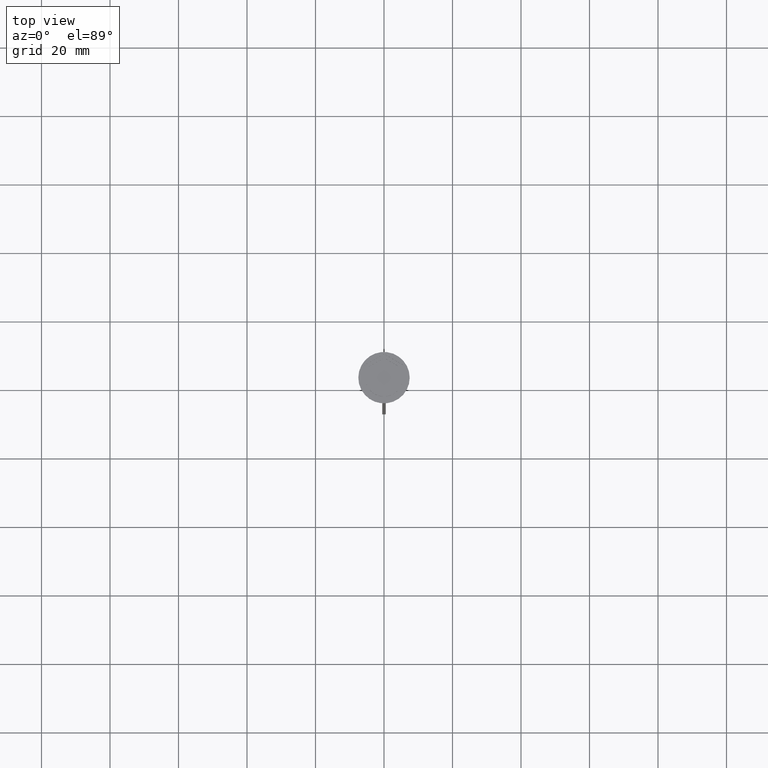
[diagram: clean part render]
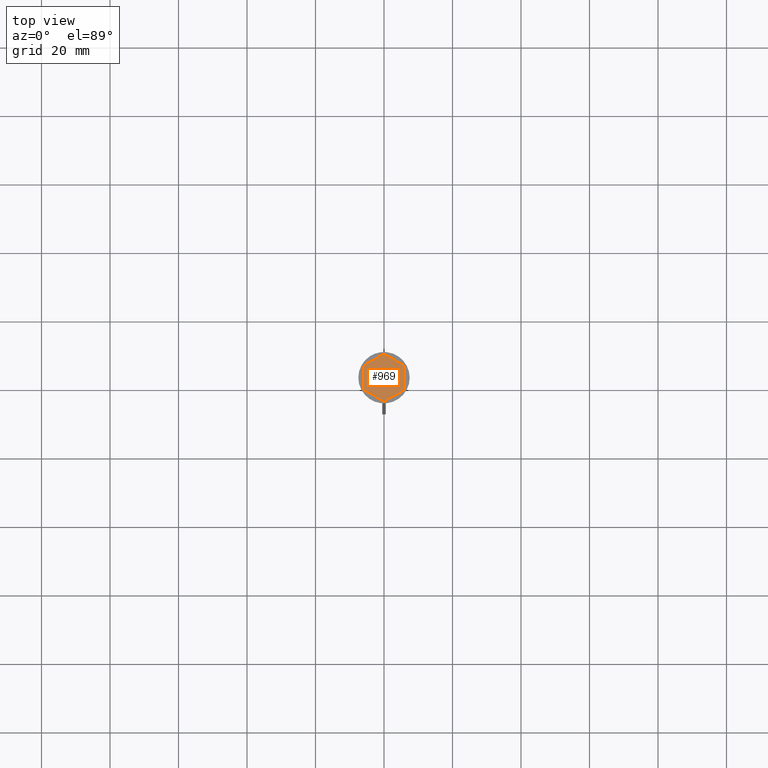
[diagram: same view with one face highlighted and labeled with its STEP entity id]
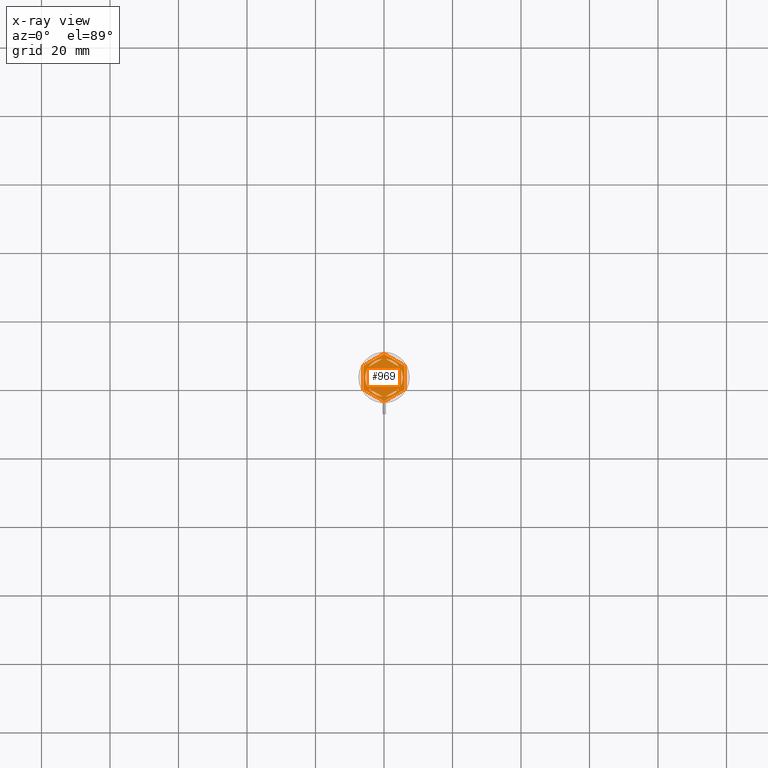
[diagram: x-ray of the same camera — body ghosted, the highlighted face saturated]
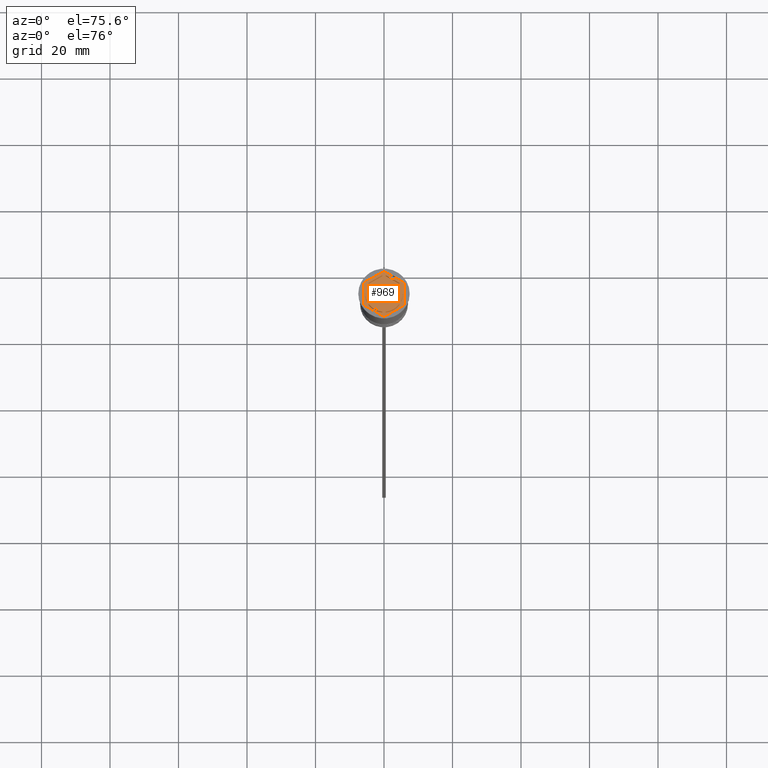
[diagram: same view with one face highlighted and labeled with its STEP entity id]
A machine part, top view. The second image highlights one B-rep face of the part: STEP entity #969.
The next image is the same camera in x-ray: the body ghosted, the highlighted face saturated — about 0% of this face is hidden behind the body in this view.
A second angle (auxiliary view) of the same face is appended — the face is thin or edge-on in the first view.
In plain terms, the highlighted planar face has unit normal (0, 0, 1).
Its self-contained STEP definition (entity closure, byte-faithful):
#19 = DIRECTION ( 'NONE',  ( 0.8660254037844385966, 0.5000000000000001110, -0.000000000000000000 ) ) ;
#30 = EDGE_CURVE ( 'NONE', #1550, #2446, #1545, .T. ) ;
#43 = AXIS2_PLACEMENT_3D ( 'NONE', #313, #1100, #1891 ) ;
#77 = CARTESIAN_POINT ( 'NONE',  ( -5.000000000000000888, -2.886751345948129099, -1.000000000000000888 ) ) ;
#94 = VECTOR ( 'NONE', #2028, 1000.000000000000227 ) ;
#116 = EDGE_CURVE ( 'NONE', #519, #642, #2459, .T. ) ;
#126 = CARTESIAN_POINT ( 'NONE',  ( -4.484313483298445036, -3.184483095183233470, -1.000000000000000888 ) ) ;
#155 = CARTESIAN_POINT ( 'NONE',  ( 0.000000000000000000, 0.000000000000000000, -1.000000000000000000 ) ) ;
#162 = AXIS2_PLACEMENT_3D ( 'NONE', #1289, #2075, #337 ) ;
#169 = EDGE_LOOP ( 'NONE', ( #1653, #258 ) ) ;
#184 = VERTEX_POINT ( 'NONE', #905 ) ;
#204 = VERTEX_POINT ( 'NONE', #126 ) ;
#252 = DIRECTION ( 'NONE',  ( 0.000000000000000000, -1.000000000000000000, 0.000000000000000000 ) ) ;
#253 = AXIS2_PLACEMENT_3D ( 'NONE', #1619, #2215, #1067 ) ;
#258 = ORIENTED_EDGE ( 'NONE', *, *, #2063, .F. ) ;
#264 = EDGE_CURVE ( 'NONE', #1884, #1261, #983, .T. ) ;
#276 = DIRECTION ( 'NONE',  ( 0.8660254037844387076, -0.4999999999999998335, 0.000000000000000000 ) ) ;
#299 = EDGE_LOOP ( 'NONE', ( #2064, #1964 ) ) ;
#313 = CARTESIAN_POINT ( 'NONE',  ( 0.000000000000000000, 0.000000000000000000, -1.000000000000000000 ) ) ;
#323 = ORIENTED_EDGE ( 'NONE', *, *, #2313, .F. ) ;
#327 = LINE ( 'NONE', #2281, #537 ) ;
#333 = FACE_OUTER_BOUND ( 'NONE', #1232, .T. ) ;
#337 = DIRECTION ( 'NONE',  ( 1.000000000000000000, 0.000000000000000000, 0.000000000000000000 ) ) ;
#342 = CARTESIAN_POINT ( 'NONE',  ( 0.000000000000000000, 0.000000000000000000, -1.000000000000000000 ) ) ;
#362 = ORIENTED_EDGE ( 'NONE', *, *, #2316, .F. ) ;
#388 = CARTESIAN_POINT ( 'NONE',  ( 6.000000000000000000, 3.464101615137753942, -1.000000000000000000 ) ) ;
#391 = EDGE_CURVE ( 'NONE', #2290, #1206, #2212, .T. ) ;
#440 = CARTESIAN_POINT ( 'NONE',  ( 4.999999999999999112, -2.291287847477924355, -1.000000000000000888 ) ) ;
#454 = ORIENTED_EDGE ( 'NONE', *, *, #2357, .F. ) ;
#472 = CARTESIAN_POINT ( 'NONE',  ( -6.000000000000000000, 3.464101615137752166, -1.000000000000000000 ) ) ;
#477 = ORIENTED_EDGE ( 'NONE', *, *, #1822, .F. ) ;
#492 = EDGE_CURVE ( 'NONE', #1422, #786, #1053, .T. ) ;
#514 = DIRECTION ( 'NONE',  ( -0.8660254037844385966, -0.4999999999999998890, 0.000000000000000000 ) ) ;
#519 = VERTEX_POINT ( 'NONE', #1893 ) ;
#521 = EDGE_CURVE ( 'NONE', #1261, #2290, #327, .T. ) ;
#537 = VECTOR ( 'NONE', #514, 1000.000000000000227 ) ;
#560 = FACE_BOUND ( 'NONE', #299, .T. ) ;
#561 = ORIENTED_EDGE ( 'NONE', *, *, #2149, .T. ) ;
#565 = CARTESIAN_POINT ( 'NONE',  ( 6.000000000000000000, 3.464101615137753942, -1.000000000000000000 ) ) ;
#572 = DIRECTION ( 'NONE',  ( 1.000000000000000000, 0.000000000000000000, -0.000000000000000000 ) ) ;
#592 = CARTESIAN_POINT ( 'NONE',  ( 4.336808689942017736E-16, 5.773502691896259087, -1.000000000000000888 ) ) ;
#593 = ORIENTED_EDGE ( 'NONE', *, *, #30, .F. ) ;
#612 = VECTOR ( 'NONE', #1346, 1000.000000000000000 ) ;
#626 = LINE ( 'NONE', #865, #2067 ) ;
#642 = VERTEX_POINT ( 'NONE', #1127 ) ;
#669 = CARTESIAN_POINT ( 'NONE',  ( -6.000000000000000000, -3.464101615137755719, -1.000000000000000000 ) ) ;
#685 = CARTESIAN_POINT ( 'NONE',  ( 0.000000000000000000, 0.000000000000000000, -1.000000000000000000 ) ) ;
#718 = LINE ( 'NONE', #2261, #1886 ) ;
#720 = AXIS2_PLACEMENT_3D ( 'NONE', #342, #2436, #1482 ) ;
#738 = AXIS2_PLACEMENT_3D ( 'NONE', #155, #1323, #572 ) ;
#771 = VERTEX_POINT ( 'NONE', #1991 ) ;
#779 = CARTESIAN_POINT ( 'NONE',  ( -0.5156865167015569629, -5.475770942661155161, -1.000000000000000888 ) ) ;
#786 = VERTEX_POINT ( 'NONE', #1659 ) ;
#790 = CARTESIAN_POINT ( 'NONE',  ( 5.000000000000000888, 2.291287847477922135, -1.000000000000000888 ) ) ;
#796 = ORIENTED_EDGE ( 'NONE', *, *, #1651, .F. ) ;
#823 = ORIENTED_EDGE ( 'NONE', *, *, #2325, .F. ) ;
#824 = EDGE_LOOP ( 'NONE', ( #323, #1109 ) ) ;
#848 = CIRCLE ( 'NONE', #162, 5.500000000000001776 ) ;
#865 = CARTESIAN_POINT ( 'NONE',  ( 5.000000000000000888, 2.886751345948130876, -1.000000000000000888 ) ) ;
#879 = DIRECTION ( 'NONE',  ( 0.000000000000000000, 0.000000000000000000, 1.000000000000000000 ) ) ;
#881 = CARTESIAN_POINT ( 'NONE',  ( -5.500000000000001776, 0.000000000000000000, -1.000000000000000000 ) ) ;
#883 = VERTEX_POINT ( 'NONE', #881 ) ;
#899 = CARTESIAN_POINT ( 'NONE',  ( -5.000000000000000888, 2.291287847477921247, -1.000000000000000888 ) ) ;
#905 = CARTESIAN_POINT ( 'NONE',  ( -5.000000000000000888, -2.291287847477921247, -1.000000000000000888 ) ) ;
#928 = EDGE_LOOP ( 'NONE', ( #593, #796 ) ) ;
#969 = ADVANCED_FACE ( 'NONE', ( #1488, #1135, #560, #1900, #1121, #1732, #333 ), #1337, .T. ) ;
#970 = CIRCLE ( 'NONE', #1708, 5.500000000000001776 ) ;
#983 = LINE ( 'NONE', #388, #612 ) ;
#987 = DIRECTION ( 'NONE',  ( -0.8660254037844387076, -0.4999999999999997224, 0.000000000000000000 ) ) ;
#996 = EDGE_CURVE ( 'NONE', #642, #519, #718, .T. ) ;
#1031 = LINE ( 'NONE', #1628, #1977 ) ;
#1053 = LINE ( 'NONE', #1237, #94 ) ;
#1054 = DIRECTION ( 'NONE',  ( -0.8660254037844385966, 0.5000000000000001110, 0.000000000000000000 ) ) ;
#1067 = DIRECTION ( 'NONE',  ( 1.000000000000000000, 0.000000000000000000, 0.000000000000000000 ) ) ;
#1100 = DIRECTION ( 'NONE',  ( 0.000000000000000000, 0.000000000000000000, 1.000000000000000000 ) ) ;
#1109 = ORIENTED_EDGE ( 'NONE', *, *, #1573, .F. ) ;
#1121 = FACE_BOUND ( 'NONE', #1494, .T. ) ;
#1127 = CARTESIAN_POINT ( 'NONE',  ( 4.484313483298445036, -3.184483095183233026, -1.000000000000000888 ) ) ;
#1135 = FACE_BOUND ( 'NONE', #928, .T. ) ;
#1175 = DIRECTION ( 'NONE',  ( 0.000000000000000000, 1.000000000000000000, 0.000000000000000000 ) ) ;
#1186 = VECTOR ( 'NONE', #1814, 1000.000000000000000 ) ;
#1206 = VERTEX_POINT ( 'NONE', #669 ) ;
#1212 = VECTOR ( 'NONE', #252, 1000.000000000000000 ) ;
#1232 = EDGE_LOOP ( 'NONE', ( #1938, #1273, #1378, #561, #1235, #2384 ) ) ;
#1235 = ORIENTED_EDGE ( 'NONE', *, *, #492, .T. ) ;
#1237 = CARTESIAN_POINT ( 'NONE',  ( -4.280685092543093048E-16, -6.928203230275507885, -1.000000000000000000 ) ) ;
#1261 = VERTEX_POINT ( 'NONE', #2405 ) ;
#1273 = ORIENTED_EDGE ( 'NONE', *, *, #521, .T. ) ;
#1289 = CARTESIAN_POINT ( 'NONE',  ( 0.000000000000000000, 0.000000000000000000, -1.000000000000000000 ) ) ;
#1308 = DIRECTION ( 'NONE',  ( 1.000000000000000000, 0.000000000000000000, 0.000000000000000000 ) ) ;
#1323 = DIRECTION ( 'NONE',  ( 0.000000000000000000, 0.000000000000000000, 1.000000000000000000 ) ) ;
#1337 = PLANE ( 'NONE',  #738 ) ;
#1346 = DIRECTION ( 'NONE',  ( -0.8660254037844387076, 0.4999999999999998335, 0.000000000000000000 ) ) ;
#1348 = VECTOR ( 'NONE', #19, 1000.000000000000000 ) ;
#1378 = ORIENTED_EDGE ( 'NONE', *, *, #391, .T. ) ;
#1421 = DIRECTION ( 'NONE',  ( -3.004629197474317076E-16, -1.000000000000000000, 0.000000000000000000 ) ) ;
#1422 = VERTEX_POINT ( 'NONE', #1529 ) ;
#1444 = CARTESIAN_POINT ( 'NONE',  ( 0.000000000000000000, 0.000000000000000000, -1.000000000000000000 ) ) ;
#1482 = DIRECTION ( 'NONE',  ( 1.000000000000000000, 0.000000000000000000, 0.000000000000000000 ) ) ;
#1488 = FACE_BOUND ( 'NONE', #169, .T. ) ;
#1494 = EDGE_LOOP ( 'NONE', ( #477, #454, #362 ) ) ;
#1510 = CARTESIAN_POINT ( 'NONE',  ( 0.5156865167015596274, 5.475770942661155161, -1.000000000000000888 ) ) ;
#1529 = CARTESIAN_POINT ( 'NONE',  ( -4.280685092543093048E-16, -6.928203230275507885, -1.000000000000000000 ) ) ;
#1534 = CIRCLE ( 'NONE', #720, 5.500000000000001776 ) ;
#1537 = CIRCLE ( 'NONE', #43, 5.500000000000001776 ) ;
#1544 = EDGE_CURVE ( 'NONE', #2135, #771, #1751, .T. ) ;
#1545 = CIRCLE ( 'NONE', #253, 5.500000000000001776 ) ;
#1550 = VERTEX_POINT ( 'NONE', #440 ) ;
#1573 = EDGE_CURVE ( 'NONE', #1902, #204, #1616, .T. ) ;
#1580 = VECTOR ( 'NONE', #1175, 1000.000000000000000 ) ;
#1581 = EDGE_CURVE ( 'NONE', #786, #1884, #2009, .T. ) ;
#1616 = LINE ( 'NONE', #77, #1681 ) ;
#1619 = CARTESIAN_POINT ( 'NONE',  ( 0.000000000000000000, 0.000000000000000000, -1.000000000000000000 ) ) ;
#1628 = CARTESIAN_POINT ( 'NONE',  ( 4.999999999999999112, -2.886751345948130432, -1.000000000000000888 ) ) ;
#1651 = EDGE_CURVE ( 'NONE', #2446, #1550, #1031, .T. ) ;
#1653 = ORIENTED_EDGE ( 'NONE', *, *, #2294, .F. ) ;
#1657 = VECTOR ( 'NONE', #1831, 1000.000000000000114 ) ;
#1658 = ORIENTED_EDGE ( 'NONE', *, *, #1544, .F. ) ;
#1659 = CARTESIAN_POINT ( 'NONE',  ( 5.999999999999998224, -3.464101615137753942, -1.000000000000000000 ) ) ;
#1681 = VECTOR ( 'NONE', #1054, 1000.000000000000000 ) ;
#1692 = CARTESIAN_POINT ( 'NONE',  ( 4.484313483298442371, 3.184483095183238355, -1.000000000000000888 ) ) ;
#1708 = AXIS2_PLACEMENT_3D ( 'NONE', #2417, #2085, #2095 ) ;
#1732 = FACE_BOUND ( 'NONE', #2203, .T. ) ;
#1751 = LINE ( 'NONE', #592, #1348 ) ;
#1814 = DIRECTION ( 'NONE',  ( 2.503857664561932376E-16, 1.000000000000000000, 0.000000000000000000 ) ) ;
#1822 = EDGE_CURVE ( 'NONE', #2225, #883, #1534, .T. ) ;
#1831 = DIRECTION ( 'NONE',  ( 0.8660254037844388186, -0.4999999999999997224, 0.000000000000000000 ) ) ;
#1861 = DIRECTION ( 'NONE',  ( 1.000000000000000000, 0.000000000000000000, 0.000000000000000000 ) ) ;
#1884 = VERTEX_POINT ( 'NONE', #565 ) ;
#1886 = VECTOR ( 'NONE', #987, 1000.000000000000114 ) ;
#1891 = DIRECTION ( 'NONE',  ( 1.000000000000000000, 0.000000000000000000, 0.000000000000000000 ) ) ;
#1893 = CARTESIAN_POINT ( 'NONE',  ( 0.5156865167015526330, -5.475770942661155161, -1.000000000000000888 ) ) ;
#1900 = FACE_BOUND ( 'NONE', #824, .T. ) ;
#1902 = VERTEX_POINT ( 'NONE', #779 ) ;
#1938 = ORIENTED_EDGE ( 'NONE', *, *, #264, .T. ) ;
#1964 = ORIENTED_EDGE ( 'NONE', *, *, #996, .F. ) ;
#1977 = VECTOR ( 'NONE', #1421, 1000.000000000000000 ) ;
#1991 = CARTESIAN_POINT ( 'NONE',  ( -0.5156865167015569629, 5.475770942661155161, -1.000000000000000888 ) ) ;
#2009 = LINE ( 'NONE', #2234, #1186 ) ;
#2024 = CARTESIAN_POINT ( 'NONE',  ( -6.000000000000000000, -3.464101615137755719, -1.000000000000000000 ) ) ;
#2027 = CIRCLE ( 'NONE', #2221, 5.500000000000001776 ) ;
#2028 = DIRECTION ( 'NONE',  ( 0.8660254037844385966, 0.5000000000000000000, 0.000000000000000000 ) ) ;
#2063 = EDGE_CURVE ( 'NONE', #2248, #2331, #626, .T. ) ;
#2064 = ORIENTED_EDGE ( 'NONE', *, *, #116, .F. ) ;
#2067 = VECTOR ( 'NONE', #276, 1000.000000000000114 ) ;
#2075 = DIRECTION ( 'NONE',  ( 0.000000000000000000, 0.000000000000000000, 1.000000000000000000 ) ) ;
#2085 = DIRECTION ( 'NONE',  ( 0.000000000000000000, 0.000000000000000000, 1.000000000000000000 ) ) ;
#2095 = DIRECTION ( 'NONE',  ( 1.000000000000000000, 0.000000000000000000, 0.000000000000000000 ) ) ;
#2127 = LINE ( 'NONE', #2162, #1580 ) ;
#2135 = VERTEX_POINT ( 'NONE', #2376 ) ;
#2149 = EDGE_CURVE ( 'NONE', #1206, #1422, #2393, .T. ) ;
#2162 = CARTESIAN_POINT ( 'NONE',  ( -5.000000000000000888, 2.886751345948129099, -1.000000000000000888 ) ) ;
#2195 = AXIS2_PLACEMENT_3D ( 'NONE', #1444, #879, #1308 ) ;
#2203 = EDGE_LOOP ( 'NONE', ( #823, #1658 ) ) ;
#2212 = LINE ( 'NONE', #472, #1212 ) ;
#2215 = DIRECTION ( 'NONE',  ( 0.000000000000000000, 0.000000000000000000, 1.000000000000000000 ) ) ;
#2221 = AXIS2_PLACEMENT_3D ( 'NONE', #685, #2263, #1861 ) ;
#2225 = VERTEX_POINT ( 'NONE', #899 ) ;
#2234 = CARTESIAN_POINT ( 'NONE',  ( 5.999999999999998224, -3.464101615137753942, -1.000000000000000000 ) ) ;
#2248 = VERTEX_POINT ( 'NONE', #1510 ) ;
#2252 = CARTESIAN_POINT ( 'NONE',  ( -6.000000000000000000, 3.464101615137752166, -1.000000000000000000 ) ) ;
#2261 = CARTESIAN_POINT ( 'NONE',  ( -1.734723475976807094E-15, -5.773502691896258199, -1.000000000000000888 ) ) ;
#2263 = DIRECTION ( 'NONE',  ( 0.000000000000000000, 0.000000000000000000, 1.000000000000000000 ) ) ;
#2281 = CARTESIAN_POINT ( 'NONE',  ( 0.000000000000000000, 6.928203230275506996, -1.000000000000000000 ) ) ;
#2290 = VERTEX_POINT ( 'NONE', #2252 ) ;
#2294 = EDGE_CURVE ( 'NONE', #2331, #2248, #2027, .T. ) ;
#2313 = EDGE_CURVE ( 'NONE', #204, #1902, #970, .T. ) ;
#2316 = EDGE_CURVE ( 'NONE', #883, #184, #848, .T. ) ;
#2325 = EDGE_CURVE ( 'NONE', #771, #2135, #1537, .T. ) ;
#2331 = VERTEX_POINT ( 'NONE', #1692 ) ;
#2357 = EDGE_CURVE ( 'NONE', #184, #2225, #2127, .T. ) ;
#2376 = CARTESIAN_POINT ( 'NONE',  ( -4.484313483298445036, 3.184483095183233470, -1.000000000000000888 ) ) ;
#2384 = ORIENTED_EDGE ( 'NONE', *, *, #1581, .T. ) ;
#2393 = LINE ( 'NONE', #2024, #1657 ) ;
#2405 = CARTESIAN_POINT ( 'NONE',  ( 0.000000000000000000, 6.928203230275506996, -1.000000000000000000 ) ) ;
#2417 = CARTESIAN_POINT ( 'NONE',  ( 0.000000000000000000, 0.000000000000000000, -1.000000000000000000 ) ) ;
#2436 = DIRECTION ( 'NONE',  ( 0.000000000000000000, 0.000000000000000000, 1.000000000000000000 ) ) ;
#2446 = VERTEX_POINT ( 'NONE', #790 ) ;
#2459 = CIRCLE ( 'NONE', #2195, 5.500000000000001776 ) ;